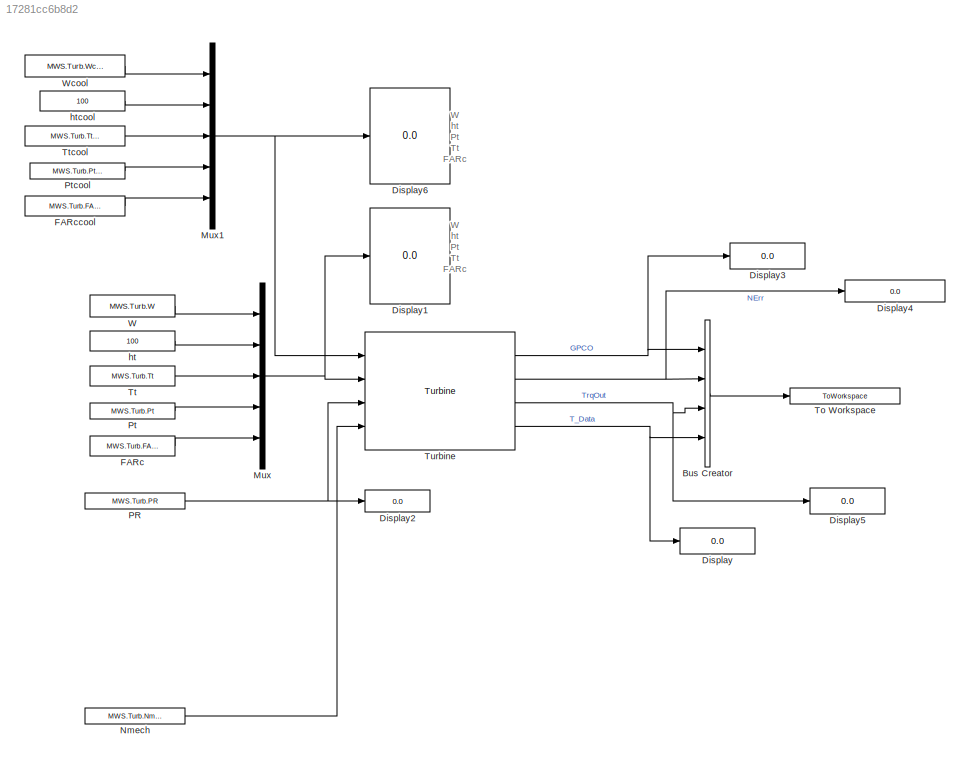
MODEL slx_17281cc6b8d2
KIND model
CONFIG AbsTol = auto
CONFIG EnableMultiTasking = on
CONFIG FixedStep = 1
CONFIG MaxStep = auto
CONFIG MinStep = auto
CONFIG RelTol = 1e-3
CONFIG SampleTimeConstraint = Unconstrained
CONFIG Solver = FixedStepDiscrete
CONFIG SolverName = FixedStepDiscrete
CONFIG StartTime = 0.0
CONFIG StopTime = 1
BLOCK [BusCreator] Bus Creator
  DisplayOption = bar
  InheritFromInputs = on
  Inputs = 4
  Ports = [4, 1]
BLOCK [Display] Display
  Decimation = 1
  Ports = [1]
BLOCK [Display] Display1
  Decimation = 1
  Ports = [1]
BLOCK [Display] Display2
  Decimation = 1
  Ports = [1]
BLOCK [Display] Display3
  Decimation = 1
  Format = long
  Ports = [1]
BLOCK [Display] Display4
  Decimation = 1
  Format = long
  Ports = [1]
BLOCK [Display] Display5
  Decimation = 1
  Ports = [1]
BLOCK [Display] Display6
  Decimation = 1
  Ports = [1]
BLOCK [Constant] FARc
  Value = MWS.Turb.FARc
BLOCK [Constant] FARccool
  Value = MWS.Turb.FARccool
BLOCK [Mux] Mux
  DisplayOption = bar
  Inputs = 5
  Ports = [5, 1]
BLOCK [Mux] Mux1
  DisplayOption = bar
  Inputs = 5
  Ports = [5, 1]
BLOCK [Constant] Nmech
  Value = MWS.Turb.Nmech
BLOCK [Constant] PR
  Value = MWS.Turb.PR
BLOCK [Constant] Pt
  Value = MWS.Turb.Pt
BLOCK [Constant] Ptcool
  Value = MWS.Turb.Ptcool
BLOCK [ToWorkspace] To Workspace
  MaxDataPoints = inf
  Ports = [1]
  SampleTime = -1
  VariableName = TB_Output
BLOCK [Constant] Tt
  Value = MWS.Turb.Tt
BLOCK [Constant] Ttcool
  Value = MWS.Turb.Ttcool
BLOCK [Reference] Turbine  REF=Lib_Turbo_Turbine_TMATS/Turbine
  Ports = [4, 4]
  SourceBlock = Lib_Turbo_Turbine_TMATS/Turbine
  SourceType = T-MATS: Turbine Library Block
BLOCK [Constant] W
  Value = MWS.Turb.W
BLOCK [Constant] Wcool
  Value = MWS.Turb.Wcool
BLOCK [Constant] ht
  Value = 100
BLOCK [Constant] htcool
  Value = 100
ANNOTATION (root): W ht Pt Tt FARc
LINE Bus Creator:1 -> To Workspace:1
LINE FARc:1 -> Mux:5
LINE FARccool:1 -> Mux1:5
NET Mux1:1 -> Display6:1, Turbine:1
NET Mux:1 -> Display1:1, Turbine:2
LINE Nmech:1 -> Turbine:4
NET PR:1 -> Display2:1, Turbine:3
LINE Pt:1 -> Mux:4
LINE Ptcool:1 -> Mux1:4
LINE Tt:1 -> Mux:3
LINE Ttcool:1 -> Mux1:3
NET Turbine:1 -> Bus Creator:1, Display3:1
NET Turbine:2 -> Bus Creator:2, Display4:1
NET Turbine:3 -> Bus Creator:3, Display5:1
NET Turbine:4 -> Bus Creator:4, Display:1
LINE W:1 -> Mux:1
LINE Wcool:1 -> Mux1:1
LINE ht:1 -> Mux:2
LINE htcool:1 -> Mux1:2
note: NET lines group one-source signal fan-out (src -> all destinations, sorted); 1:1 wires keep LINE
